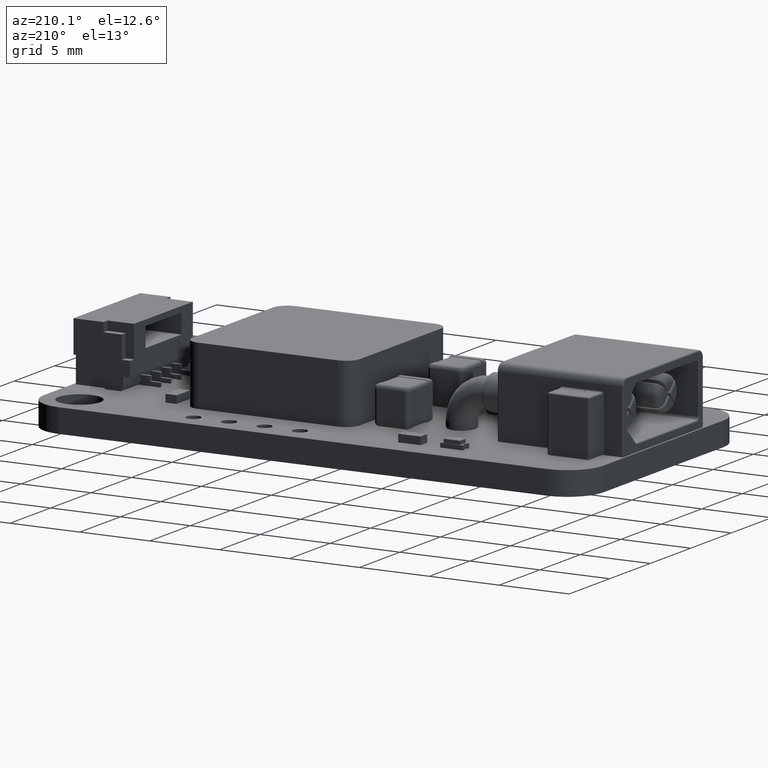
[diagram: clean part render]
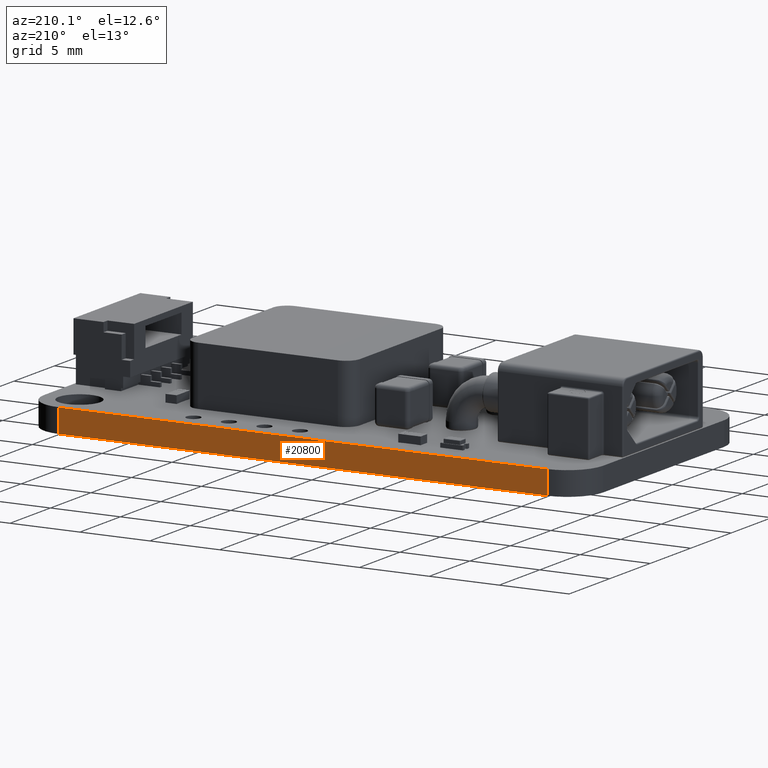
[diagram: same view with one face highlighted and labeled with its STEP entity id]
A machine part, auxiliary view. The second image highlights one B-rep face of the part: STEP entity #20800.
In plain terms, the highlighted planar face has unit normal (-0, 1, 0).
Its self-contained STEP definition (entity closure, byte-faithful):
#1569 = ORIENTED_EDGE ( 'NONE', *, *, #31462, .T. ) ;
#1804 = DIRECTION ( 'NONE',  ( -0.000000000000000000, 1.000000000000000000, 0.000000000000000000 ) ) ;
#3726 = CARTESIAN_POINT ( 'NONE',  ( 62.86000061035198883, 45.40000152587900573, -1.691439340000000069 ) ) ;
#5232 = PLANE ( 'NONE',  #12000 ) ;
#5617 = LINE ( 'NONE', #32645, #8631 ) ;
#6373 = ORIENTED_EDGE ( 'NONE', *, *, #30687, .F. ) ;
#8631 = VECTOR ( 'NONE', #20483, 1000.000000000000000 ) ;
#11960 = VECTOR ( 'NONE', #28205, 1000.000000000000000 ) ;
#12000 = AXIS2_PLACEMENT_3D ( 'NONE', #23046, #1804, #25420 ) ;
#12138 = VERTEX_POINT ( 'NONE', #21382 ) ;
#13054 = CARTESIAN_POINT ( 'NONE',  ( 27.94000053405799733, 45.40000152587900573, -1.691439340000000069 ) ) ;
#13540 = VERTEX_POINT ( 'NONE', #3726 ) ;
#13844 = VECTOR ( 'NONE', #15926, 1000.000000000000000 ) ;
#15926 = DIRECTION ( 'NONE',  ( 1.000000000000000000, 0.000000000000000000, 0.000000000000000000 ) ) ;
#16406 = CARTESIAN_POINT ( 'NONE',  ( 27.94000053405799733, 45.40000152587900573, 0.000000000000000000 ) ) ;
#19202 = DIRECTION ( 'NONE',  ( 0.000000000000000000, 0.000000000000000000, 1.000000000000000000 ) ) ;
#19579 = ORIENTED_EDGE ( 'NONE', *, *, #20750, .F. ) ;
#20052 = ORIENTED_EDGE ( 'NONE', *, *, #34701, .T. ) ;
#20483 = DIRECTION ( 'NONE',  ( 0.000000000000000000, 0.000000000000000000, 1.000000000000000000 ) ) ;
#20750 = EDGE_CURVE ( 'NONE', #13540, #12138, #27906, .T. ) ;
#20800 = ADVANCED_FACE ( 'NONE', ( #22288 ), #5232, .T. ) ;
#21382 = CARTESIAN_POINT ( 'NONE',  ( 62.86000061035198883, 45.40000152587900573, 0.000000000000000000 ) ) ;
#22133 = LINE ( 'NONE', #13054, #13844 ) ;
#22288 = FACE_OUTER_BOUND ( 'NONE', #22500, .T. ) ;
#22500 = EDGE_LOOP ( 'NONE', ( #20052, #1569, #19579, #6373 ) ) ;
#22654 = CARTESIAN_POINT ( 'NONE',  ( 62.86000061035198883, 45.40000152587900573, -1.691439340000000069 ) ) ;
#23046 = CARTESIAN_POINT ( 'NONE',  ( 27.94000053405799733, 45.40000152587900573, -1.691439340000000069 ) ) ;
#23779 = CARTESIAN_POINT ( 'NONE',  ( 27.94000053405799733, 45.40000152587900573, -1.691439340000000069 ) ) ;
#25420 = DIRECTION ( 'NONE',  ( 1.000000000000000000, 0.000000000000000000, 0.000000000000000000 ) ) ;
#27906 = LINE ( 'NONE', #22654, #32997 ) ;
#28007 = VERTEX_POINT ( 'NONE', #34039 ) ;
#28205 = DIRECTION ( 'NONE',  ( 1.000000000000000000, 0.000000000000000000, 0.000000000000000000 ) ) ;
#30687 = EDGE_CURVE ( 'NONE', #31532, #13540, #22133, .T. ) ;
#31462 = EDGE_CURVE ( 'NONE', #28007, #12138, #37507, .T. ) ;
#31532 = VERTEX_POINT ( 'NONE', #23779 ) ;
#32645 = CARTESIAN_POINT ( 'NONE',  ( 27.94000053405799733, 45.40000152587900573, -1.691439340000000069 ) ) ;
#32997 = VECTOR ( 'NONE', #19202, 1000.000000000000000 ) ;
#34039 = CARTESIAN_POINT ( 'NONE',  ( 27.94000053405799733, 45.40000152587900573, 0.000000000000000000 ) ) ;
#34701 = EDGE_CURVE ( 'NONE', #31532, #28007, #5617, .T. ) ;
#37507 = LINE ( 'NONE', #16406, #11960 ) ;